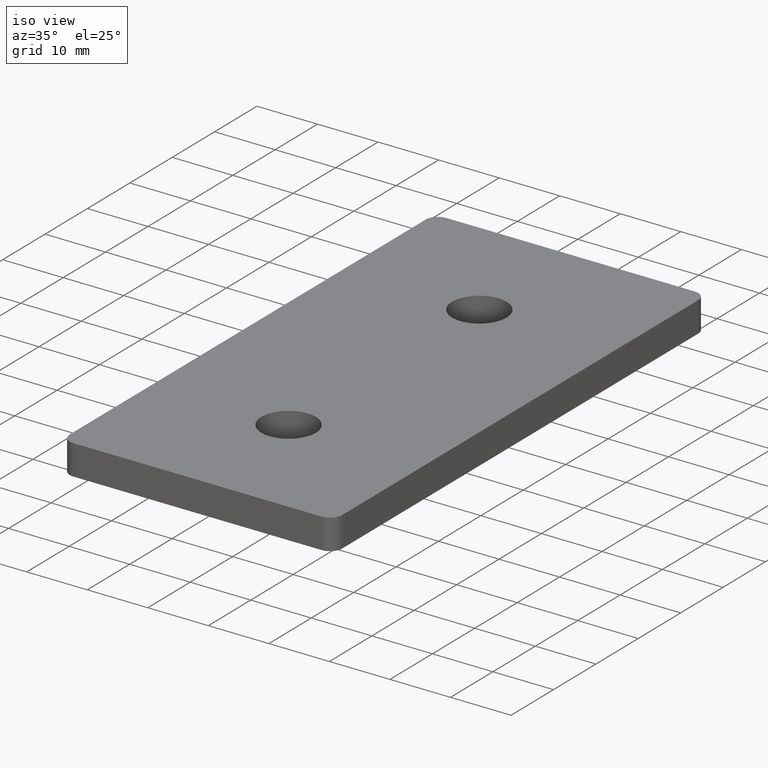
[diagram: clean part render]
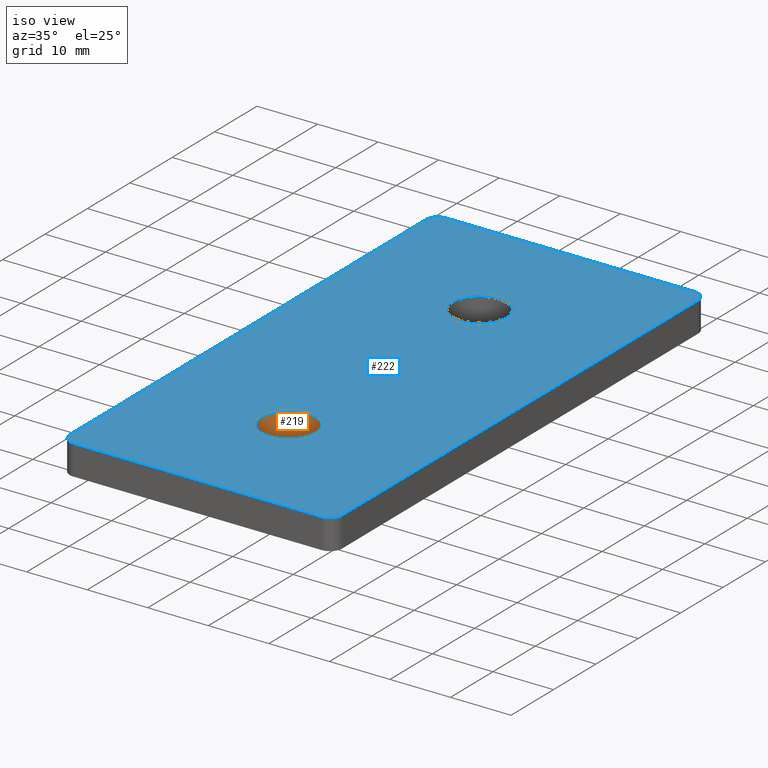
[diagram: same view with the hole feature highlighted: cylindrical wall and planar end face, labeled with their STEP entity ids]
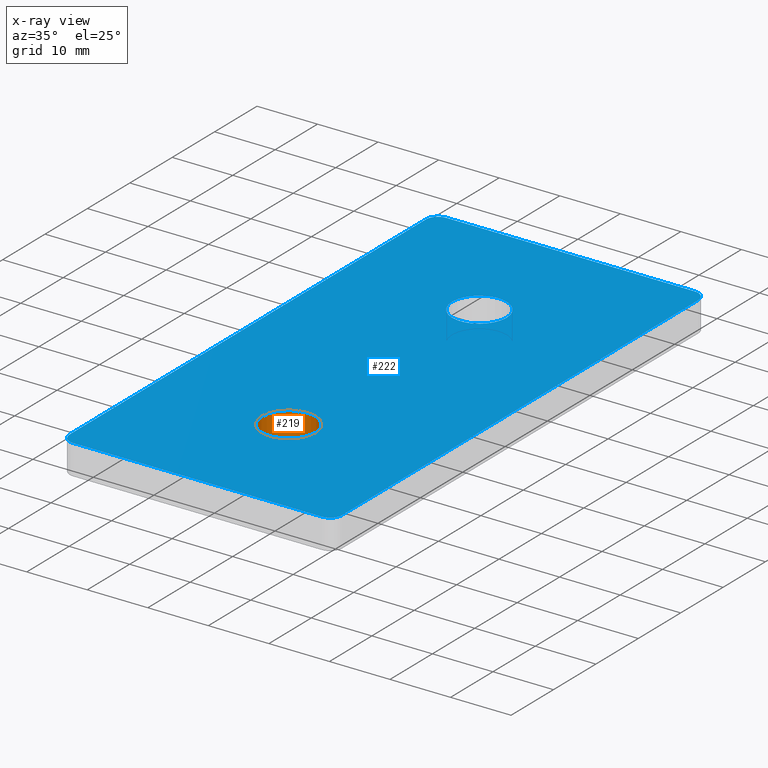
[diagram: x-ray of the same camera — body ghosted, the hole faces saturated]
A machine part, iso view. The highlighted faces form one hole feature of diameter 9 mm: the cylindrical wall (entity #219, orange) and its adjacent planar end face (entity #222, blue) — they share a circular edge in the B-rep.
The next image is the same camera in x-ray (body ghosted, the hole faces saturated) — the bore reads through the body.
Wall:
#18=FACE_BOUND('',#51,.T.);
#35=FACE_OUTER_BOUND('',#50,.T.);
#50=EDGE_LOOP('',(#185));
#51=EDGE_LOOP('',(#186));
#95=CIRCLE('',#233,4.5);
#100=CIRCLE('',#245,4.5);
#112=VERTEX_POINT('',#341);
#120=VERTEX_POINT('',#369);
#133=EDGE_CURVE('',#112,#112,#95,.T.);
#146=EDGE_CURVE('',#120,#120,#100,.T.);
#185=ORIENTED_EDGE('',*,*,#133,.F.);
#186=ORIENTED_EDGE('',*,*,#146,.F.);
#210=CYLINDRICAL_SURFACE('',#244,4.5);
#219=ADVANCED_FACE('',(#35,#18),#210,.F.);
#233=AXIS2_PLACEMENT_3D('',#342,#273,#274);
#244=AXIS2_PLACEMENT_3D('',#368,#303,#304);
#245=AXIS2_PLACEMENT_3D('',#370,#305,#306);
#273=DIRECTION('center_axis',(0.,0.,1.));
#274=DIRECTION('ref_axis',(1.,0.,0.));
#303=DIRECTION('center_axis',(0.,0.,1.));
#304=DIRECTION('ref_axis',(1.,0.,0.));
#305=DIRECTION('center_axis',(0.,0.,-1.));
#306=DIRECTION('ref_axis',(1.,0.,0.));
#341=CARTESIAN_POINT('',(-4.5,-22.5,0.));
#342=CARTESIAN_POINT('Origin',(0.,-22.5,0.));
#368=CARTESIAN_POINT('Origin',(0.,-22.5,-93.9646401499041));
#369=CARTESIAN_POINT('',(4.5,-22.5,5.));
#370=CARTESIAN_POINT('Origin',(0.,-22.5,5.));
End face:
#19=FACE_BOUND('',#55,.T.);
#20=FACE_BOUND('',#56,.T.);
#26=PLANE('',#248);
#38=FACE_OUTER_BOUND('',#54,.T.);
#54=EDGE_LOOP('',(#195,#196,#197,#198,#199,#200,#201,#202));
#55=EDGE_LOOP('',(#203));
#56=EDGE_LOOP('',(#204));
#63=LINE('',#345,#79);
#69=LINE('',#360,#85);
#71=LINE('',#372,#87);
#72=LINE('',#374,#88);
#79=VECTOR('',#277,41.);
#85=VECTOR('',#293,41.);
#87=VECTOR('',#309,84.);
#88=VECTOR('',#312,84.);
#89=CIRCLE('',#226,2.);
#96=CIRCLE('',#236,2.);
#97=CIRCLE('',#238,2.);
#98=CIRCLE('',#241,2.);
#99=CIRCLE('',#243,4.5);
#100=CIRCLE('',#245,4.5);
#101=VERTEX_POINT('',#317);
#102=VERTEX_POINT('',#318);
#113=VERTEX_POINT('',#344);
#114=VERTEX_POINT('',#348);
#115=VERTEX_POINT('',#352);
#116=VERTEX_POINT('',#353);
#117=VERTEX_POINT('',#358);
#118=VERTEX_POINT('',#362);
#119=VERTEX_POINT('',#366);
#120=VERTEX_POINT('',#369);
#121=EDGE_CURVE('',#101,#102,#89,.T.);
#134=EDGE_CURVE('',#102,#113,#63,.T.);
#136=EDGE_CURVE('',#113,#114,#96,.T.);
#138=EDGE_CURVE('',#115,#116,#97,.T.);
#142=EDGE_CURVE('',#117,#115,#69,.T.);
#143=EDGE_CURVE('',#118,#117,#98,.T.);
#145=EDGE_CURVE('',#119,#119,#99,.T.);
#146=EDGE_CURVE('',#120,#120,#100,.T.);
#147=EDGE_CURVE('',#114,#118,#71,.T.);
#148=EDGE_CURVE('',#116,#101,#72,.T.);
#195=ORIENTED_EDGE('',*,*,#121,.F.);
#196=ORIENTED_EDGE('',*,*,#148,.F.);
#197=ORIENTED_EDGE('',*,*,#138,.F.);
#198=ORIENTED_EDGE('',*,*,#142,.F.);
#199=ORIENTED_EDGE('',*,*,#143,.F.);
#200=ORIENTED_EDGE('',*,*,#147,.F.);
#201=ORIENTED_EDGE('',*,*,#136,.F.);
#202=ORIENTED_EDGE('',*,*,#134,.F.);
#203=ORIENTED_EDGE('',*,*,#145,.T.);
#204=ORIENTED_EDGE('',*,*,#146,.T.);
#222=ADVANCED_FACE('',(#38,#19,#20),#26,.T.);
#226=AXIS2_PLACEMENT_3D('',#319,#253,#254);
#236=AXIS2_PLACEMENT_3D('',#349,#281,#282);
#238=AXIS2_PLACEMENT_3D('',#354,#286,#287);
#241=AXIS2_PLACEMENT_3D('',#363,#296,#297);
#243=AXIS2_PLACEMENT_3D('',#367,#301,#302);
#245=AXIS2_PLACEMENT_3D('',#370,#305,#306);
#248=AXIS2_PLACEMENT_3D('',#375,#313,#314);
#253=DIRECTION('center_axis',(0.,0.,-1.));
#254=DIRECTION('ref_axis',(0.707106781186549,-0.707106781186546,0.));
#277=DIRECTION('',(-1.,0.,0.));
#281=DIRECTION('center_axis',(0.,0.,-1.));
#282=DIRECTION('ref_axis',(-0.707106781186546,-0.707106781186549,0.));
#286=DIRECTION('center_axis',(0.,0.,-1.));
#287=DIRECTION('ref_axis',(0.707106781186546,0.707106781186549,0.));
#293=DIRECTION('',(1.,0.,0.));
#296=DIRECTION('center_axis',(0.,0.,-1.));
#297=DIRECTION('ref_axis',(-0.707106781186549,0.707106781186546,0.));
#301=DIRECTION('center_axis',(0.,0.,-1.));
#302=DIRECTION('ref_axis',(1.,0.,0.));
#305=DIRECTION('center_axis',(0.,0.,-1.));
#306=DIRECTION('ref_axis',(1.,0.,0.));
#309=DIRECTION('',(0.,1.,0.));
#312=DIRECTION('',(0.,-1.,0.));
#313=DIRECTION('center_axis',(0.,0.,1.));
#314=DIRECTION('ref_axis',(1.,0.,0.));
#317=CARTESIAN_POINT('',(22.5,-42.,5.));
#318=CARTESIAN_POINT('',(20.5,-44.,5.));
#319=CARTESIAN_POINT('Origin',(20.5,-42.,5.));
#344=CARTESIAN_POINT('',(-20.5,-44.,5.));
#345=CARTESIAN_POINT('',(22.5,-44.,5.));
#348=CARTESIAN_POINT('',(-22.5,-42.,5.));
#349=CARTESIAN_POINT('Origin',(-20.5,-42.,5.));
#352=CARTESIAN_POINT('',(20.5,44.,5.));
#353=CARTESIAN_POINT('',(22.5,42.,5.));
#354=CARTESIAN_POINT('Origin',(20.5,42.,5.));
#358=CARTESIAN_POINT('',(-20.5,44.,5.));
#360=CARTESIAN_POINT('',(-22.5,44.,5.));
#362=CARTESIAN_POINT('',(-22.5,42.,5.));
#363=CARTESIAN_POINT('Origin',(-20.5,42.,5.));
#366=CARTESIAN_POINT('',(4.5,22.5,5.));
#367=CARTESIAN_POINT('Origin',(0.,22.5,5.));
#369=CARTESIAN_POINT('',(4.5,-22.5,5.));
#370=CARTESIAN_POINT('Origin',(0.,-22.5,5.));
#372=CARTESIAN_POINT('',(-22.5,-44.,5.));
#374=CARTESIAN_POINT('',(22.5,44.,5.));
#375=CARTESIAN_POINT('Origin',(0.,-3.08859036925795E-16,5.));